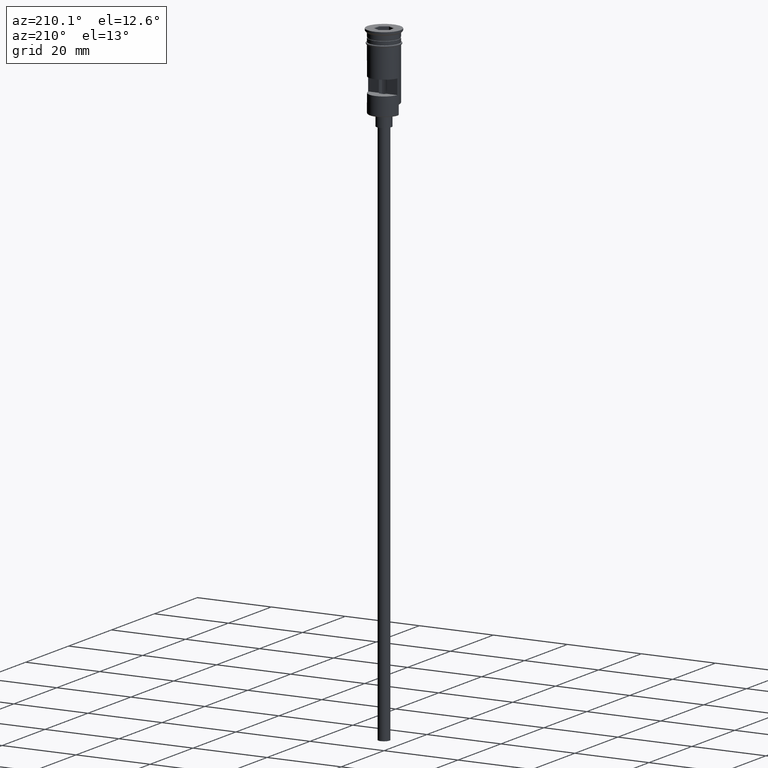
[diagram: clean part render]
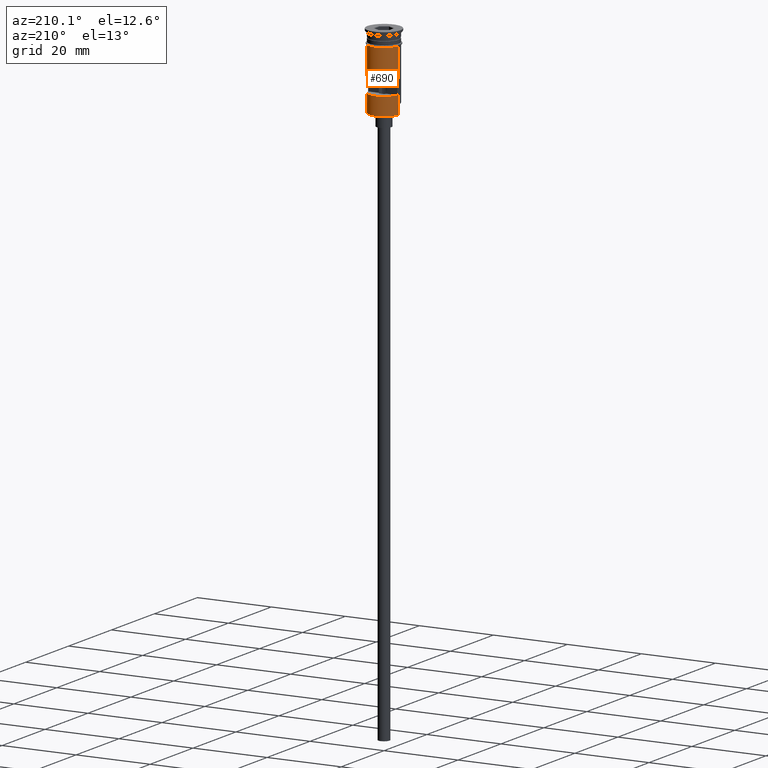
[diagram: same view with one face highlighted and labeled with its STEP entity id]
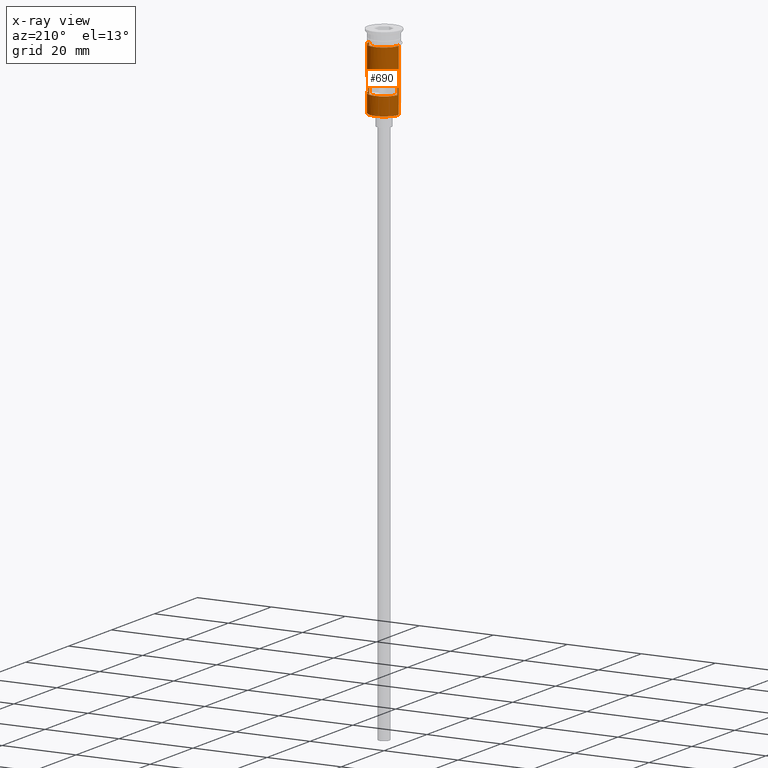
[diagram: x-ray of the same camera — body ghosted, the highlighted face saturated]
A machine part, auxiliary view. The second image highlights one B-rep face of the part: STEP entity #690.
The next image is the same camera in x-ray: the body ghosted, the highlighted face saturated — about 0% of this face is hidden behind the body in this view.
In plain terms, the highlighted cylindrical surface (edge-blend (fillet) strip) has radius 4 mm, axis along (-0, -0, 1).
Its self-contained STEP definition (entity closure, byte-faithful):
#35 = EDGE_CURVE ( 'NONE', #306, #1162, #1524, .T. ) ;
#37 = DIRECTION ( 'NONE',  ( 1.000000000000000000, 0.000000000000000000, 0.000000000000000000 ) ) ;
#56 = EDGE_CURVE ( 'NONE', #799, #306, #992, .T. ) ;
#72 = DIRECTION ( 'NONE',  ( -0.000000000000000000, -0.000000000000000000, 1.000000000000000000 ) ) ;
#89 = VECTOR ( 'NONE', #155, 1000.000000000000000 ) ;
#106 = ORIENTED_EDGE ( 'NONE', *, *, #1118, .F. ) ;
#113 = CARTESIAN_POINT ( 'NONE',  ( -3.999999999999997335, 0.000000000000000000, -20.49999999999999645 ) ) ;
#118 = ORIENTED_EDGE ( 'NONE', *, *, #249, .F. ) ;
#129 = FACE_BOUND ( 'NONE', #374, .T. ) ;
#155 = DIRECTION ( 'NONE',  ( -0.000000000000000000, -0.000000000000000000, 1.000000000000000000 ) ) ;
#158 = DIRECTION ( 'NONE',  ( -1.000000000000000000, 0.000000000000000000, 0.000000000000000000 ) ) ;
#184 = CARTESIAN_POINT ( 'NONE',  ( -3.999999999999997335, 0.000000000000000000, -17.79999999999998295 ) ) ;
#212 = CARTESIAN_POINT ( 'NONE',  ( 3.999999999999997335, 4.898587196589409870E-16, -20.29999999999997584 ) ) ;
#242 = VECTOR ( 'NONE', #72, 1000.000000000000000 ) ;
#249 = EDGE_CURVE ( 'NONE', #1393, #684, #1430, .T. ) ;
#274 = VERTEX_POINT ( 'NONE', #1141 ) ;
#279 = DIRECTION ( 'NONE',  ( -0.000000000000000000, 0.000000000000000000, -1.000000000000000000 ) ) ;
#306 = VERTEX_POINT ( 'NONE', #954 ) ;
#311 = ORIENTED_EDGE ( 'NONE', *, *, #1390, .T. ) ;
#356 = EDGE_CURVE ( 'NONE', #799, #274, #945, .T. ) ;
#369 = CIRCLE ( 'NONE', #1343, 4.000000000000000000 ) ;
#370 = CARTESIAN_POINT ( 'NONE',  ( -4.000000000000000000, 4.898587196589412829E-16, 0.000000000000000000 ) ) ;
#374 = EDGE_LOOP ( 'NONE', ( #1069, #880, #501, #106 ) ) ;
#410 = VERTEX_POINT ( 'NONE', #1544 ) ;
#418 = ORIENTED_EDGE ( 'NONE', *, *, #988, .F. ) ;
#428 = ORIENTED_EDGE ( 'NONE', *, *, #35, .T. ) ;
#429 = CYLINDRICAL_SURFACE ( 'NONE', #1380, 4.000000000000000000 ) ;
#501 = ORIENTED_EDGE ( 'NONE', *, *, #991, .F. ) ;
#508 = DIRECTION ( 'NONE',  ( -0.000000000000000000, -0.000000000000000000, 1.000000000000000000 ) ) ;
#509 = VERTEX_POINT ( 'NONE', #871 ) ;
#559 = ORIENTED_EDGE ( 'NONE', *, *, #356, .F. ) ;
#602 = CARTESIAN_POINT ( 'NONE',  ( 3.954743986657038413, 0.5999999999999996447, -15.50000000000000000 ) ) ;
#636 = CARTESIAN_POINT ( 'NONE',  ( 4.000000000000000000, 0.000000000000000000, 0.000000000000000000 ) ) ;
#650 = VECTOR ( 'NONE', #987, 1000.000000000000000 ) ;
#655 = DIRECTION ( 'NONE',  ( 0.000000000000000000, 0.000000000000000000, 1.000000000000000000 ) ) ;
#660 = CARTESIAN_POINT ( 'NONE',  ( 3.999999999999997335, 4.898587196589409870E-16, -20.49999999999999645 ) ) ;
#665 = DIRECTION ( 'NONE',  ( 1.000000000000000000, 0.000000000000000000, 0.000000000000000000 ) ) ;
#684 = VERTEX_POINT ( 'NONE', #1026 ) ;
#690 = ADVANCED_FACE ( 'NONE', ( #129, #1489 ), #429, .T. ) ;
#692 = DIRECTION ( 'NONE',  ( -0.000000000000000000, -0.000000000000000000, 1.000000000000000000 ) ) ;
#700 = EDGE_LOOP ( 'NONE', ( #428, #311, #118, #418, #559, #936 ) ) ;
#793 = DIRECTION ( 'NONE',  ( 0.000000000000000000, 0.000000000000000000, 1.000000000000000000 ) ) ;
#799 = VERTEX_POINT ( 'NONE', #212 ) ;
#871 = CARTESIAN_POINT ( 'NONE',  ( -3.954743986657037524, 0.5999999999999996447, -15.50000000000000000 ) ) ;
#877 = EDGE_CURVE ( 'NONE', #410, #1330, #993, .T. ) ;
#880 = ORIENTED_EDGE ( 'NONE', *, *, #1455, .F. ) ;
#882 = LINE ( 'NONE', #370, #1488 ) ;
#909 = CARTESIAN_POINT ( 'NONE',  ( -3.954743986657037524, 0.5999999999999996447, -11.50000000000000000 ) ) ;
#936 = ORIENTED_EDGE ( 'NONE', *, *, #56, .T. ) ;
#945 = LINE ( 'NONE', #660, #242 ) ;
#954 = CARTESIAN_POINT ( 'NONE',  ( -3.999999999999997335, 0.000000000000000000, -20.29999999999997584 ) ) ;
#957 = CARTESIAN_POINT ( 'NONE',  ( 0.000000000000000000, 0.000000000000000000, 0.000000000000000000 ) ) ;
#969 = AXIS2_PLACEMENT_3D ( 'NONE', #1491, #655, #158 ) ;
#987 = DIRECTION ( 'NONE',  ( 0.000000000000000000, 0.000000000000000000, -1.000000000000000000 ) ) ;
#988 = EDGE_CURVE ( 'NONE', #274, #1393, #1374, .T. ) ;
#991 = EDGE_CURVE ( 'NONE', #509, #1095, #1024, .T. ) ;
#992 = CIRCLE ( 'NONE', #969, 4.000000000000000000 ) ;
#993 = LINE ( 'NONE', #1345, #650 ) ;
#996 = VECTOR ( 'NONE', #1033, 1000.000000000000000 ) ;
#1001 = CIRCLE ( 'NONE', #1438, 4.000000000000000000 ) ;
#1013 = DIRECTION ( 'NONE',  ( 1.000000000000000000, 0.000000000000000000, 0.000000000000000000 ) ) ;
#1024 = LINE ( 'NONE', #1515, #996 ) ;
#1026 = CARTESIAN_POINT ( 'NONE',  ( -4.000000000000000000, 4.898587196589412829E-16, -3.799999999999998490 ) ) ;
#1033 = DIRECTION ( 'NONE',  ( -0.000000000000000000, -0.000000000000000000, 1.000000000000000000 ) ) ;
#1069 = ORIENTED_EDGE ( 'NONE', *, *, #877, .F. ) ;
#1095 = VERTEX_POINT ( 'NONE', #909 ) ;
#1116 = DIRECTION ( 'NONE',  ( -0.000000000000000000, -0.000000000000000000, 1.000000000000000000 ) ) ;
#1118 = EDGE_CURVE ( 'NONE', #1330, #509, #369, .T. ) ;
#1141 = CARTESIAN_POINT ( 'NONE',  ( 4.000000000000000000, 4.898587196589412829E-16, -17.79999999999998295 ) ) ;
#1162 = VERTEX_POINT ( 'NONE', #184 ) ;
#1271 = CARTESIAN_POINT ( 'NONE',  ( 4.000000000000000000, 0.000000000000000000, -3.799999999999998490 ) ) ;
#1330 = VERTEX_POINT ( 'NONE', #602 ) ;
#1343 = AXIS2_PLACEMENT_3D ( 'NONE', #1528, #793, #1545 ) ;
#1345 = CARTESIAN_POINT ( 'NONE',  ( 3.954743986657037524, 0.5999999999999996447, 0.000000000000000000 ) ) ;
#1372 = CARTESIAN_POINT ( 'NONE',  ( 0.000000000000000000, 0.000000000000000000, -3.799999999999998490 ) ) ;
#1371 = CARTESIAN_POINT ( 'NONE',  ( 0.000000000000000000, 0.000000000000000000, -11.50000000000000000 ) ) ;
#1374 = LINE ( 'NONE', #636, #89 ) ;
#1380 = AXIS2_PLACEMENT_3D ( 'NONE', #957, #692, #665 ) ;
#1390 = EDGE_CURVE ( 'NONE', #1162, #684, #882, .T. ) ;
#1393 = VERTEX_POINT ( 'NONE', #1271 ) ;
#1430 = CIRCLE ( 'NONE', #1531, 4.000000000000000000 ) ;
#1438 = AXIS2_PLACEMENT_3D ( 'NONE', #1371, #279, #1013 ) ;
#1455 = EDGE_CURVE ( 'NONE', #1095, #410, #1001, .T. ) ;
#1486 = VECTOR ( 'NONE', #1116, 1000.000000000000000 ) ;
#1488 = VECTOR ( 'NONE', #508, 1000.000000000000000 ) ;
#1489 = FACE_OUTER_BOUND ( 'NONE', #700, .T. ) ;
#1491 = CARTESIAN_POINT ( 'NONE',  ( 0.000000000000000000, 0.000000000000000000, -20.29999999999997584 ) ) ;
#1515 = CARTESIAN_POINT ( 'NONE',  ( -3.954743986657037524, 0.5999999999999996447, 0.000000000000000000 ) ) ;
#1524 = LINE ( 'NONE', #113, #1486 ) ;
#1525 = DIRECTION ( 'NONE',  ( -0.000000000000000000, -0.000000000000000000, 1.000000000000000000 ) ) ;
#1528 = CARTESIAN_POINT ( 'NONE',  ( 0.000000000000000000, 0.000000000000000000, -15.50000000000000000 ) ) ;
#1531 = AXIS2_PLACEMENT_3D ( 'NONE', #1372, #1525, #37 ) ;
#1544 = CARTESIAN_POINT ( 'NONE',  ( 3.954743986657038413, 0.5999999999999996447, -11.50000000000000000 ) ) ;
#1545 = DIRECTION ( 'NONE',  ( -1.000000000000000000, 0.000000000000000000, 0.000000000000000000 ) ) ;